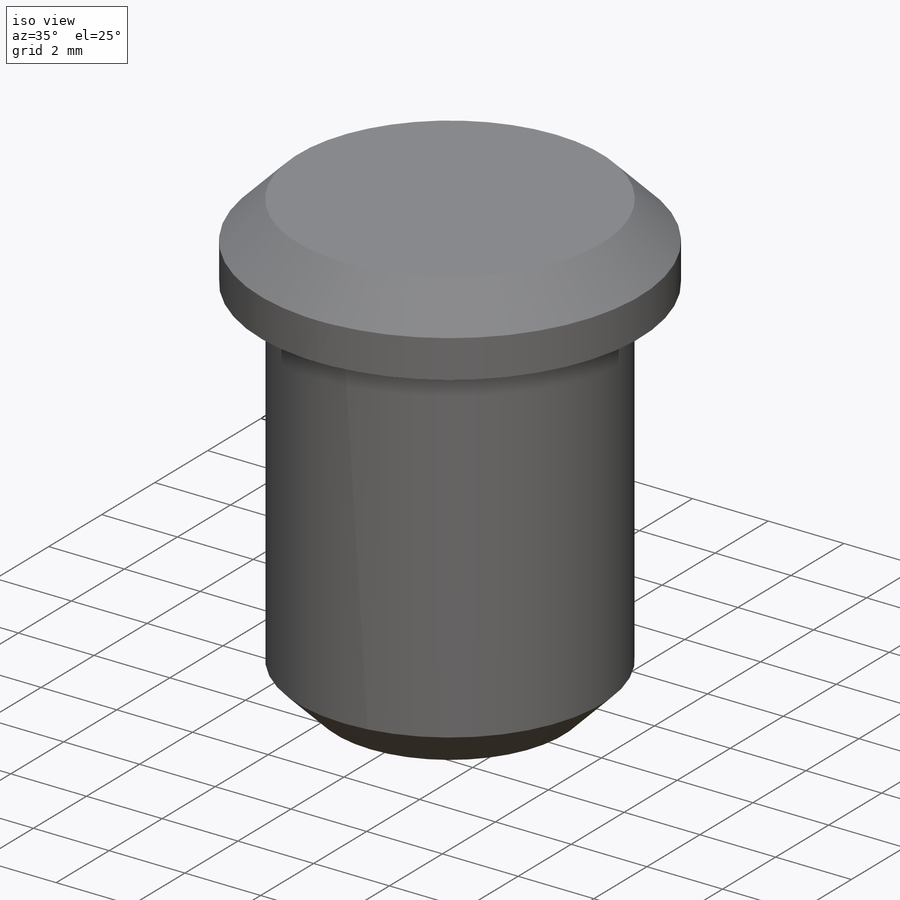
[diagram: iso view]
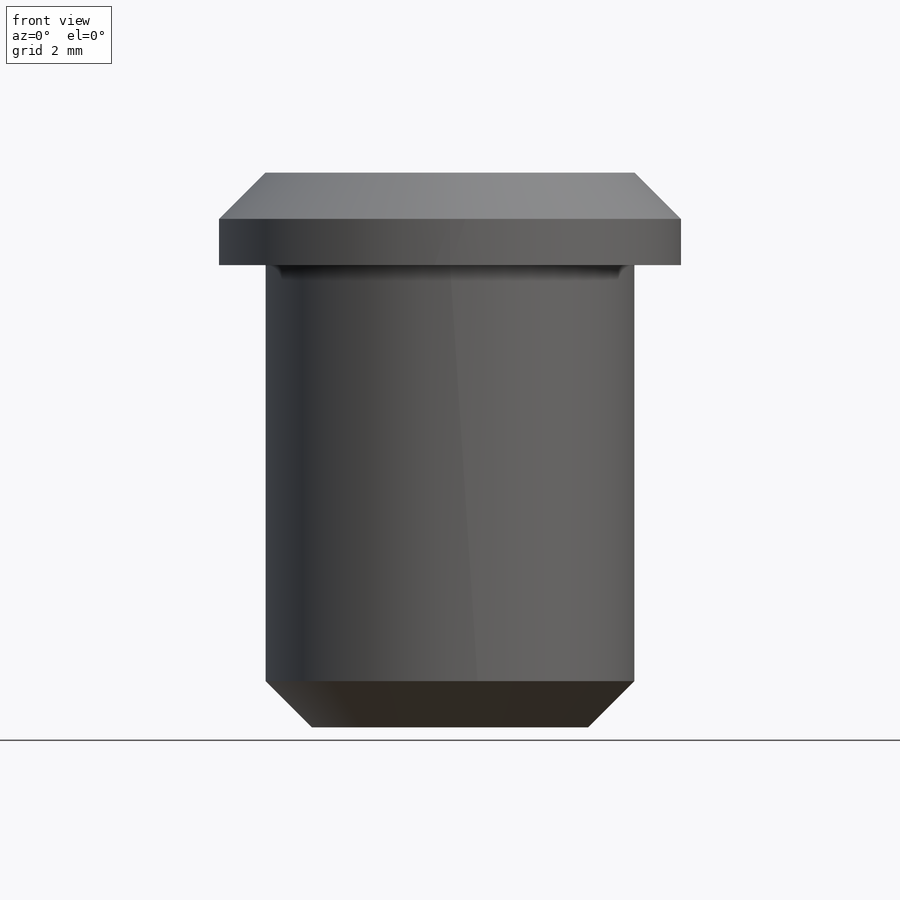
[diagram: front view]
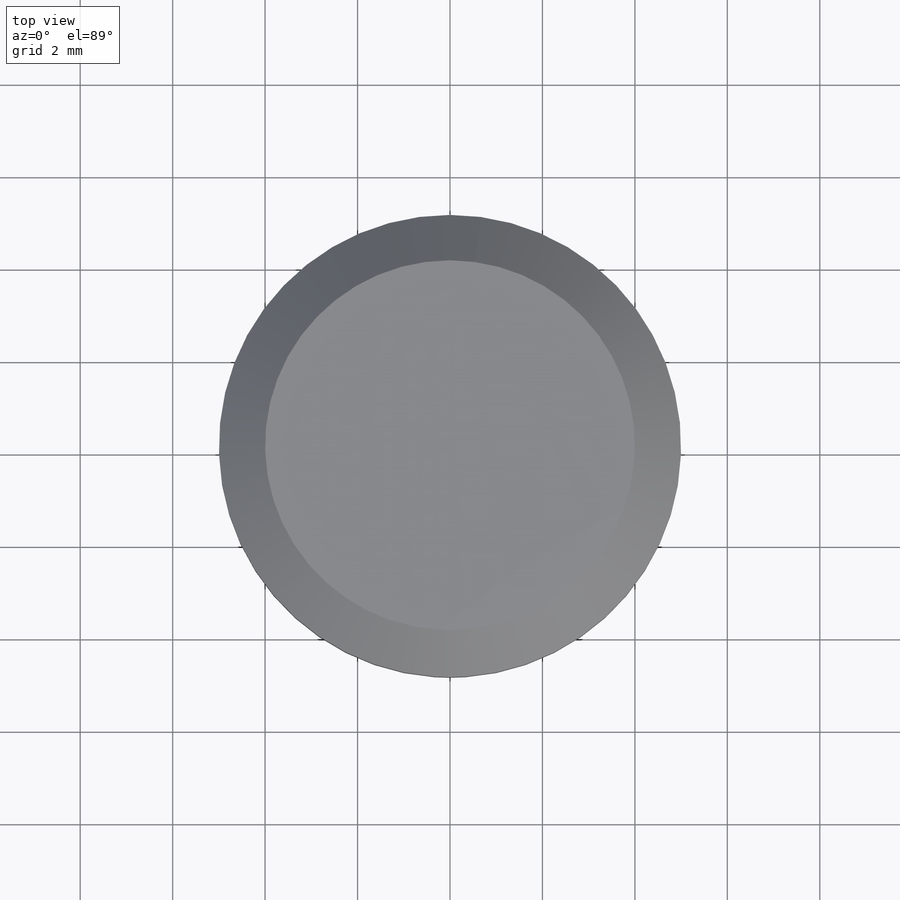
[diagram: top view]
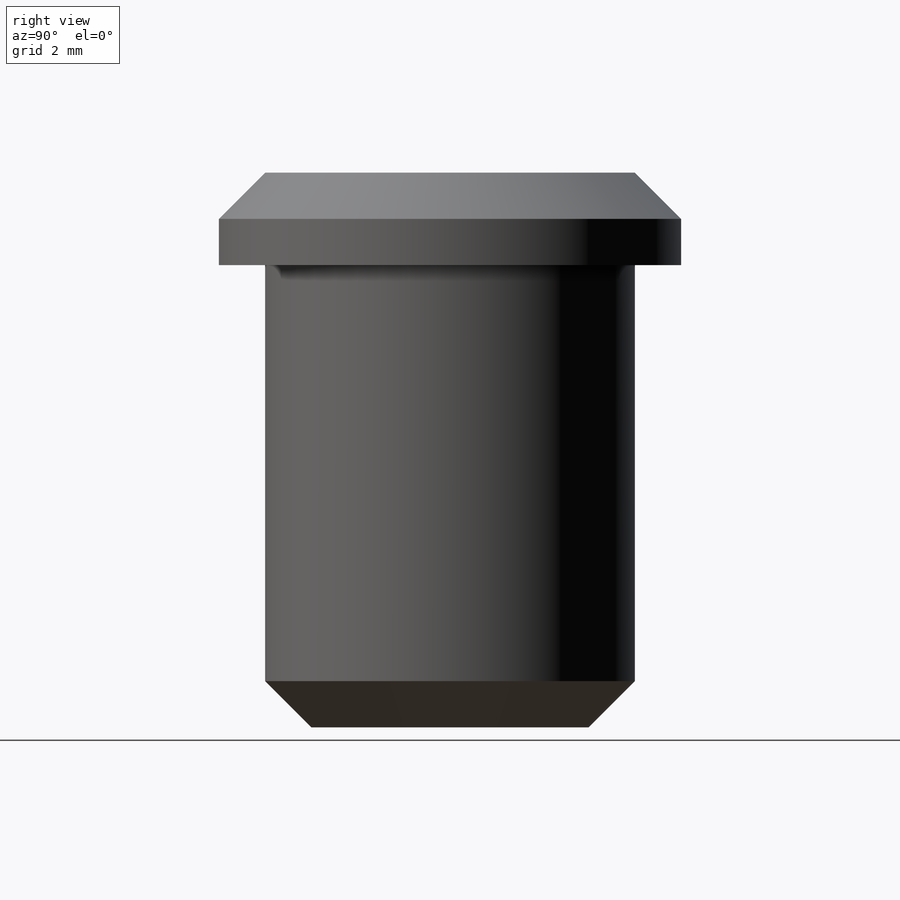
[diagram: right view]
SOLIDWORKS PART (.sldprt)
format: sldprt  version: not decoded by parser v0  size: 81,920 bytes
history: native  units: mm
features: plane x3, sketch x2, extrude x2, chamfer x2, material x1 (+12 scaffold rows collapsed)
feature tree (22):
  scaffold x12  (default folders/planes/origin — collapsed)
  material  "Material <não especificado>"
  plane  "Plano frontal"
  plane  "Plano superior"
  plane  "Plano direito"
  sketch  "Esboço1"  dims[D1=8.0mm]
  extrude  "Extrusão1"  Depth=10mm
  sketch  "Esboço2"  dims[D1=10.0mm]
  extrude  "Extrusão2"  Depth=2mm
  chamfer  "Chanfro1"  Distance=1mm Angle=45deg
  chamfer  "Chanfro2"  Distance=1mm Angle=45deg
decode coverage: 6 of 6 modeling features carry decoded parameters
note: suppression state not decoded; provenance and decode notes live in map.json
